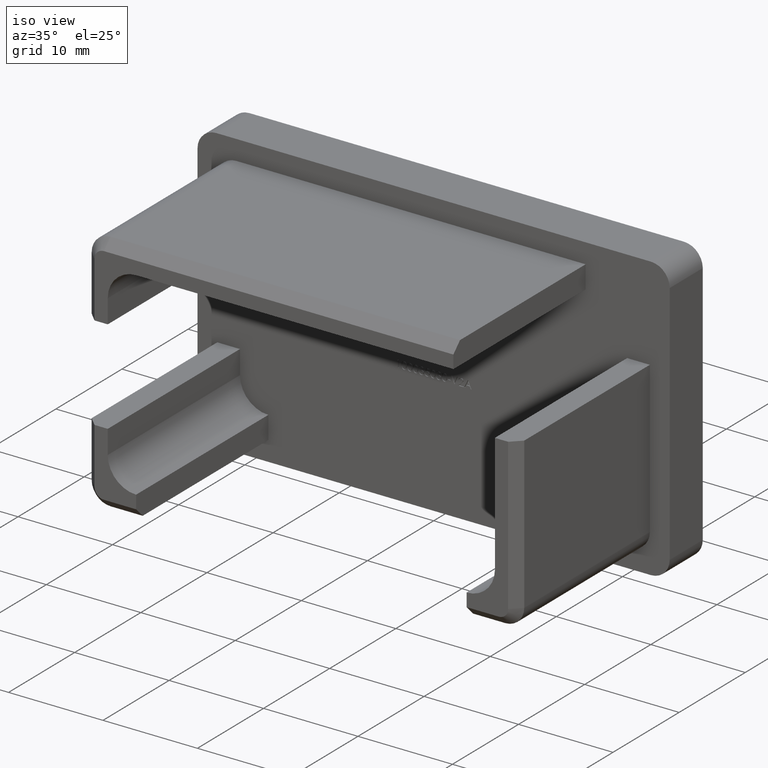
[diagram: clean part render]
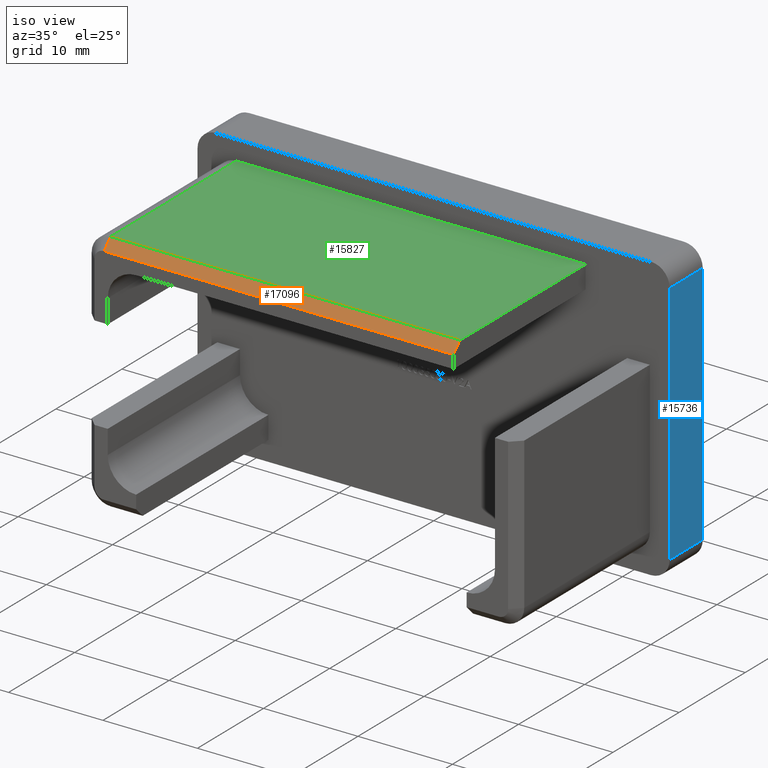
[diagram: same view with three faces highlighted in distinct colors, each labeled with its STEP entity id]
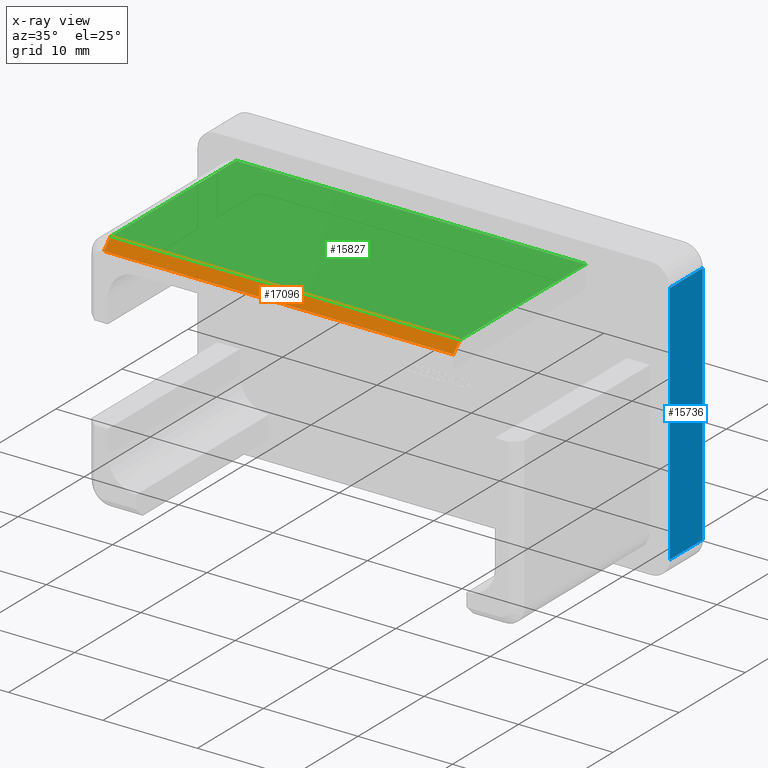
[diagram: x-ray of the same camera — body ghosted, the three highlighted faces saturated]
A machine part, iso view with three faces highlighted in distinct colors.
The next image is the same camera in x-ray (body ghosted, the three faces saturated) — at least one of them is partly hidden behind the body in this view.
Their STEP definitions:

[orange] entity #17096 — the highlighted planar face has unit normal (0, -0.7071, 0.7071).
#1033 = LINE ( 'NONE', #15608, #16092 ) ;
#1120 = DIRECTION ( 'NONE',  ( 1.000000000000000000, 0.000000000000000000, 0.000000000000000000 ) ) ;
#1378 = DIRECTION ( 'NONE',  ( 0.000000000000000000, -0.7071067811865500152, -0.7071067811865451302 ) ) ;
#2356 = CARTESIAN_POINT ( 'NONE',  ( 0.000000000000000000, -20.00000000000000000, 11.90000000000000746 ) ) ;
#2915 = VERTEX_POINT ( 'NONE', #5909 ) ;
#4353 = VERTEX_POINT ( 'NONE', #7464 ) ;
#4406 = AXIS2_PLACEMENT_3D ( 'NONE', #2356, #5168, #1120 ) ;
#4712 = DIRECTION ( 'NONE',  ( -1.000000000000000000, 0.000000000000000000, 0.000000000000000000 ) ) ;
#5168 = DIRECTION ( 'NONE',  ( 0.000000000000000000, -0.7071067811865451302, 0.7071067811865500152 ) ) ;
#5909 = CARTESIAN_POINT ( 'NONE',  ( -20.90000000000000924, -20.00000000000000000, 11.90000000000000924 ) ) ;
#5959 = CARTESIAN_POINT ( 'NONE',  ( 16.09999999999999432, -19.00000000000000000, 12.90000000000000213 ) ) ;
#6010 = VECTOR ( 'NONE', #11829, 1000.000000000000000 ) ;
#6170 = VERTEX_POINT ( 'NONE', #6876 ) ;
#6556 = EDGE_CURVE ( 'NONE', #4353, #2915, #1033, .T. ) ;
#6876 = CARTESIAN_POINT ( 'NONE',  ( -20.90000000000000924, -19.00000000000000000, 12.90000000000000213 ) ) ;
#7464 = CARTESIAN_POINT ( 'NONE',  ( 16.09999999999999432, -20.00000000000000000, 11.90000000000000746 ) ) ;
#7590 = EDGE_CURVE ( 'NONE', #6170, #11131, #14570, .T. ) ;
#8049 = EDGE_CURVE ( 'NONE', #11131, #4353, #15209, .T. ) ;
#8639 = VECTOR ( 'NONE', #11747, 1000.000000000000000 ) ;
#8816 = EDGE_LOOP ( 'NONE', ( #14103, #17321, #10755, #11625 ) ) ;
#8920 = CARTESIAN_POINT ( 'NONE',  ( -20.90000000000000924, -19.00000000000000000, 12.90000000000000213 ) ) ;
#10025 = LINE ( 'NONE', #8920, #6010 ) ;
#10755 = ORIENTED_EDGE ( 'NONE', *, *, #13446, .T. ) ;
#11131 = VERTEX_POINT ( 'NONE', #15916 ) ;
#11625 = ORIENTED_EDGE ( 'NONE', *, *, #6556, .F. ) ;
#11747 = DIRECTION ( 'NONE',  ( 1.000000000000000000, 0.000000000000000000, 0.000000000000000000 ) ) ;
#11829 = DIRECTION ( 'NONE',  ( 0.000000000000000000, -0.7071067811865505703, -0.7071067811865444641 ) ) ;
#13446 = EDGE_CURVE ( 'NONE', #6170, #2915, #10025, .T. ) ;
#13459 = CARTESIAN_POINT ( 'NONE',  ( 16.09999999999999432, -20.00000000000000000, 11.90000000000000746 ) ) ;
#13506 = VECTOR ( 'NONE', #1378, 1000.000000000000114 ) ;
#14103 = ORIENTED_EDGE ( 'NONE', *, *, #8049, .F. ) ;
#14570 = LINE ( 'NONE', #5959, #8639 ) ;
#15209 = LINE ( 'NONE', #13459, #13506 ) ;
#15608 = CARTESIAN_POINT ( 'NONE',  ( -20.90000000000000924, -20.00000000000000000, 11.90000000000000746 ) ) ;
#15916 = CARTESIAN_POINT ( 'NONE',  ( 16.09999999999999432, -19.00000000000000000, 12.90000000000000213 ) ) ;
#16092 = VECTOR ( 'NONE', #4712, 1000.000000000000000 ) ;
#17096 = ADVANCED_FACE ( 'NONE', ( #17212 ), #17286, .T. ) ;
#17212 = FACE_OUTER_BOUND ( 'NONE', #8816, .T. ) ;
#17286 = PLANE ( 'NONE',  #4406 ) ;
#17321 = ORIENTED_EDGE ( 'NONE', *, *, #7590, .F. ) ;

[blue] entity #15736 — the highlighted planar face has unit normal (-1, 0, 0).
#83 = VECTOR ( 'NONE', #13511, 1000.000000000000000 ) ;
#249 = EDGE_CURVE ( 'NONE', #16783, #15752, #4339, .T. ) ;
#685 = LINE ( 'NONE', #16708, #10874 ) ;
#1839 = EDGE_CURVE ( 'NONE', #12429, #16783, #685, .T. ) ;
#2222 = EDGE_CURVE ( 'NONE', #17532, #15752, #14019, .T. ) ;
#2801 = AXIS2_PLACEMENT_3D ( 'NONE', #4415, #13635, #14995 ) ;
#3200 = ORIENTED_EDGE ( 'NONE', *, *, #2222, .F. ) ;
#3229 = VECTOR ( 'NONE', #10118, 1000.000000000000000 ) ;
#3709 = CARTESIAN_POINT ( 'NONE',  ( 25.00000000000000000, 5.000000000000000000, 13.00000000000000000 ) ) ;
#4339 = LINE ( 'NONE', #16319, #83 ) ;
#4415 = CARTESIAN_POINT ( 'NONE',  ( 24.99999999999999645, 5.000000000000000000, -14.99999999999999822 ) ) ;
#4536 = LINE ( 'NONE', #11595, #3229 ) ;
#6231 = ORIENTED_EDGE ( 'NONE', *, *, #1839, .T. ) ;
#7064 = FACE_OUTER_BOUND ( 'NONE', #11817, .T. ) ;
#7348 = CARTESIAN_POINT ( 'NONE',  ( 24.99999999999999645, 5.000000000000000000, -14.99999999999999822 ) ) ;
#7536 = ORIENTED_EDGE ( 'NONE', *, *, #13254, .T. ) ;
#8250 = CARTESIAN_POINT ( 'NONE',  ( 24.99999999999999645, 5.000000000000000000, -12.99999999999999822 ) ) ;
#8523 = VECTOR ( 'NONE', #10065, 1000.000000000000000 ) ;
#9074 = CARTESIAN_POINT ( 'NONE',  ( 24.99999999999999645, 0.000000000000000000, -12.99999999999999822 ) ) ;
#9863 = CARTESIAN_POINT ( 'NONE',  ( 25.00000000000000000, 0.000000000000000000, 13.00000000000000000 ) ) ;
#10065 = DIRECTION ( 'NONE',  ( -1.156482317317871478E-16, -0.000000000000000000, -1.000000000000000000 ) ) ;
#10118 = DIRECTION ( 'NONE',  ( 0.000000000000000000, -1.000000000000000000, 0.000000000000000000 ) ) ;
#10874 = VECTOR ( 'NONE', #16814, 1000.000000000000000 ) ;
#11595 = CARTESIAN_POINT ( 'NONE',  ( 25.00000000000000000, 5.000000000000000000, 13.00000000000000000 ) ) ;
#11817 = EDGE_LOOP ( 'NONE', ( #6231, #17436, #3200, #7536 ) ) ;
#12429 = VERTEX_POINT ( 'NONE', #9863 ) ;
#13254 = EDGE_CURVE ( 'NONE', #17532, #12429, #4536, .T. ) ;
#13511 = DIRECTION ( 'NONE',  ( -0.000000000000000000, 1.000000000000000000, -0.000000000000000000 ) ) ;
#13635 = DIRECTION ( 'NONE',  ( -1.000000000000000000, 0.000000000000000000, 1.156482317317871478E-16 ) ) ;
#14019 = LINE ( 'NONE', #7348, #8523 ) ;
#14995 = DIRECTION ( 'NONE',  ( 1.156482317317871478E-16, 0.000000000000000000, 1.000000000000000000 ) ) ;
#15176 = PLANE ( 'NONE',  #2801 ) ;
#15736 = ADVANCED_FACE ( 'NONE', ( #7064 ), #15176, .F. ) ;
#15752 = VERTEX_POINT ( 'NONE', #8250 ) ;
#16319 = CARTESIAN_POINT ( 'NONE',  ( 24.99999999999999645, 5.000000000000000000, -12.99999999999999822 ) ) ;
#16708 = CARTESIAN_POINT ( 'NONE',  ( 24.99999999999999645, 0.000000000000000000, -14.99999999999999822 ) ) ;
#16783 = VERTEX_POINT ( 'NONE', #9074 ) ;
#16814 = DIRECTION ( 'NONE',  ( -1.156482317317871478E-16, -0.000000000000000000, -1.000000000000000000 ) ) ;
#17436 = ORIENTED_EDGE ( 'NONE', *, *, #249, .T. ) ;
#17532 = VERTEX_POINT ( 'NONE', #3709 ) ;

[green] entity #15827 — the highlighted planar face has unit normal (0, 0, -1).
#1347 = ORIENTED_EDGE ( 'NONE', *, *, #7277, .T. ) ;
#1913 = DIRECTION ( 'NONE',  ( -0.000000000000000000, -1.000000000000000000, -0.000000000000000000 ) ) ;
#4224 = DIRECTION ( 'NONE',  ( -0.000000000000000000, 1.000000000000000000, -0.000000000000000000 ) ) ;
#4318 = CARTESIAN_POINT ( 'NONE',  ( -20.90000000000000924, -20.00000000000000000, 12.90000000000000213 ) ) ;
#4435 = EDGE_LOOP ( 'NONE', ( #9484, #9747, #8883, #1347 ) ) ;
#4758 = EDGE_CURVE ( 'NONE', #11131, #16703, #13347, .T. ) ;
#5914 = VERTEX_POINT ( 'NONE', #10547 ) ;
#5959 = CARTESIAN_POINT ( 'NONE',  ( 16.09999999999999432, -19.00000000000000000, 12.90000000000000213 ) ) ;
#6170 = VERTEX_POINT ( 'NONE', #6876 ) ;
#6194 = CARTESIAN_POINT ( 'NONE',  ( 16.09999999999999432, 0.000000000000000000, 12.90000000000000213 ) ) ;
#6876 = CARTESIAN_POINT ( 'NONE',  ( -20.90000000000000924, -19.00000000000000000, 12.90000000000000213 ) ) ;
#6994 = DIRECTION ( 'NONE',  ( -1.000000000000000000, -0.000000000000000000, -0.000000000000000000 ) ) ;
#7277 = EDGE_CURVE ( 'NONE', #16703, #5914, #8225, .T. ) ;
#7590 = EDGE_CURVE ( 'NONE', #6170, #11131, #14570, .T. ) ;
#7910 = FACE_OUTER_BOUND ( 'NONE', #4435, .T. ) ;
#8225 = LINE ( 'NONE', #15096, #15439 ) ;
#8593 = PLANE ( 'NONE',  #15875 ) ;
#8639 = VECTOR ( 'NONE', #11747, 1000.000000000000000 ) ;
#8883 = ORIENTED_EDGE ( 'NONE', *, *, #4758, .T. ) ;
#9484 = ORIENTED_EDGE ( 'NONE', *, *, #12397, .T. ) ;
#9747 = ORIENTED_EDGE ( 'NONE', *, *, #7590, .T. ) ;
#10258 = CARTESIAN_POINT ( 'NONE',  ( -22.90000000000000568, -20.00000000000000000, 12.90000000000000213 ) ) ;
#10547 = CARTESIAN_POINT ( 'NONE',  ( -20.90000000000000924, 0.000000000000000000, 12.90000000000000213 ) ) ;
#11023 = CARTESIAN_POINT ( 'NONE',  ( 16.09999999999999432, -20.00000000000000000, 12.90000000000000213 ) ) ;
#11131 = VERTEX_POINT ( 'NONE', #15916 ) ;
#11553 = DIRECTION ( 'NONE',  ( -1.000000000000000000, 0.000000000000000000, -0.000000000000000000 ) ) ;
#11747 = DIRECTION ( 'NONE',  ( 1.000000000000000000, 0.000000000000000000, 0.000000000000000000 ) ) ;
#12397 = EDGE_CURVE ( 'NONE', #5914, #6170, #14055, .T. ) ;
#13347 = LINE ( 'NONE', #11023, #16755 ) ;
#14055 = LINE ( 'NONE', #4318, #16822 ) ;
#14570 = LINE ( 'NONE', #5959, #8639 ) ;
#15096 = CARTESIAN_POINT ( 'NONE',  ( -22.90000000000000568, 0.000000000000000000, 12.90000000000000213 ) ) ;
#15439 = VECTOR ( 'NONE', #6994, 1000.000000000000000 ) ;
#15774 = DIRECTION ( 'NONE',  ( 0.000000000000000000, 0.000000000000000000, -1.000000000000000000 ) ) ;
#15827 = ADVANCED_FACE ( 'NONE', ( #7910 ), #8593, .F. ) ;
#15875 = AXIS2_PLACEMENT_3D ( 'NONE', #10258, #15774, #11553 ) ;
#15916 = CARTESIAN_POINT ( 'NONE',  ( 16.09999999999999432, -19.00000000000000000, 12.90000000000000213 ) ) ;
#16703 = VERTEX_POINT ( 'NONE', #6194 ) ;
#16755 = VECTOR ( 'NONE', #4224, 1000.000000000000000 ) ;
#16822 = VECTOR ( 'NONE', #1913, 1000.000000000000000 ) ;